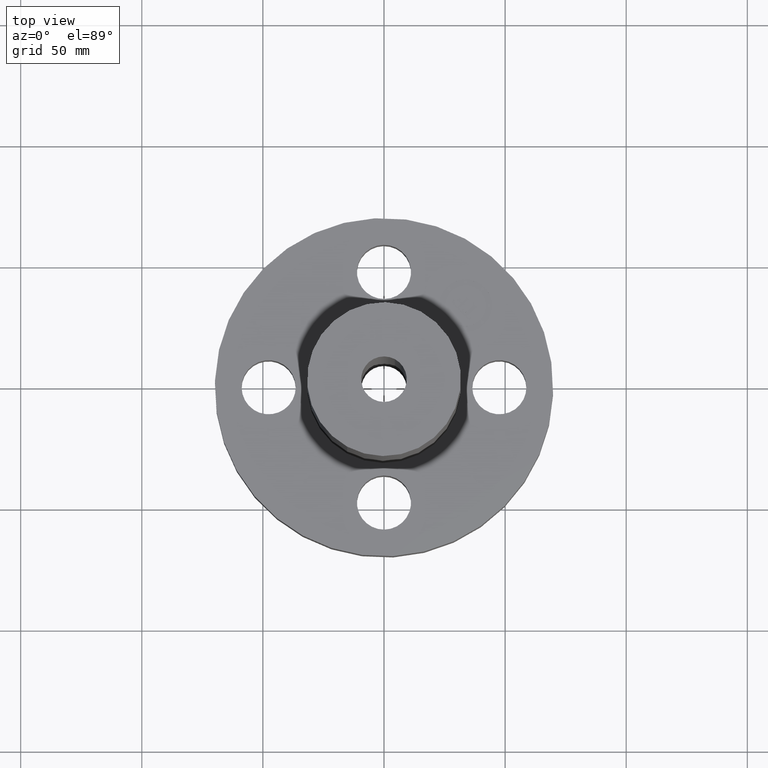
[diagram: clean part render]
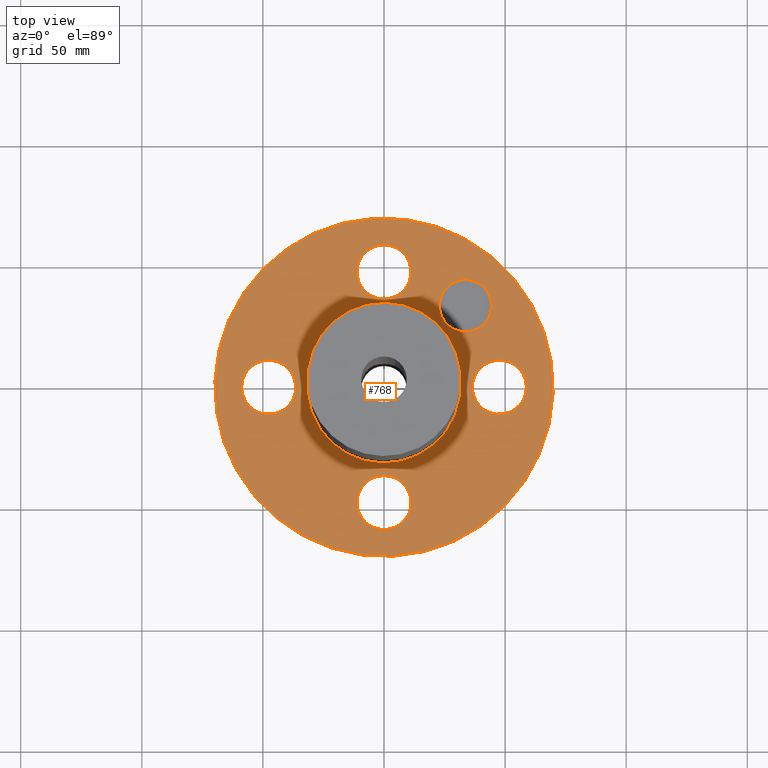
[diagram: same view with one face highlighted and labeled with its STEP entity id]
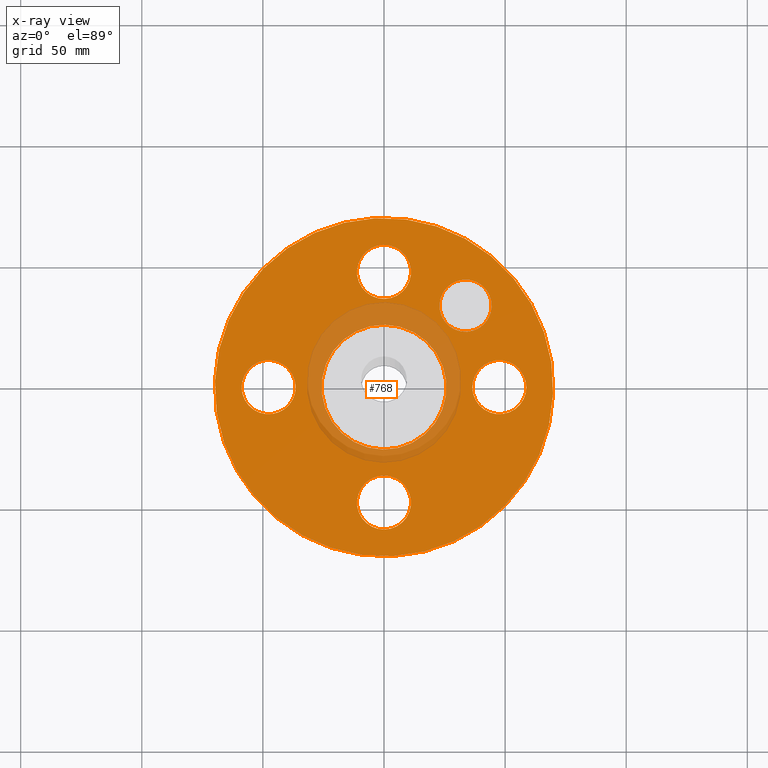
[diagram: x-ray of the same camera — body ghosted, the highlighted face saturated]
A machine part, top view. The second image highlights one B-rep face of the part: STEP entity #768.
The next image is the same camera in x-ray: the body ghosted, the highlighted face saturated — about 11% of this face is hidden behind the body in this view.
In plain terms, the highlighted planar face has unit normal (0, 0, -1).
Its self-contained STEP definition (entity closure, byte-faithful):
#51=AXIS2_PLACEMENT_3D('Circle Axis2P3D',#49,#50,$) ;
#182=AXIS2_PLACEMENT_3D('Circle Axis2P3D',#180,#181,$) ;
#206=AXIS2_PLACEMENT_3D('Circle Axis2P3D',#204,#205,$) ;
#225=AXIS2_PLACEMENT_3D('Circle Axis2P3D',#223,#224,$) ;
#242=AXIS2_PLACEMENT_3D('Circle Axis2P3D',#240,#241,$) ;
#277=AXIS2_PLACEMENT_3D('Circle Axis2P3D',#275,#276,$) ;
#606=AXIS2_PLACEMENT_3D('Circle Axis2P3D',#604,#605,$) ;
#625=AXIS2_PLACEMENT_3D('Circle Axis2P3D',#623,#624,$) ;
#649=AXIS2_PLACEMENT_3D('Circle Axis2P3D',#647,#648,$) ;
#668=AXIS2_PLACEMENT_3D('Circle Axis2P3D',#666,#667,$) ;
#692=AXIS2_PLACEMENT_3D('Circle Axis2P3D',#690,#691,$) ;
#711=AXIS2_PLACEMENT_3D('Circle Axis2P3D',#709,#710,$) ;
#724=AXIS2_PLACEMENT_3D('Plane Axis2P3D',#721,#722,#723) ;
#752=AXIS2_PLACEMENT_3D('Circle Axis2P3D',#750,#751,$) ;
#761=AXIS2_PLACEMENT_3D('Circle Axis2P3D',#759,#760,$) ;
#44=CARTESIAN_POINT('Vertex',(1.48886367277,-0.210947236987,1.25)) ;
#49=CARTESIAN_POINT('Axis2P3D Location',(1.87500000001,0.,1.25000000001)) ;
#53=CARTESIAN_POINT('Vertex',(2.26113632724,0.210947236987,1.25)) ;
#180=CARTESIAN_POINT('Axis2P3D Location',(1.87500000001,0.,1.25000000001)) ;
#201=CARTESIAN_POINT('Vertex',(-1.31842023117,-2.41335204521,1.25)) ;
#204=CARTESIAN_POINT('Axis2P3D Location',(0.,0.,1.25)) ;
#208=CARTESIAN_POINT('Vertex',(1.31842023117,2.41335204521,1.25)) ;
#223=CARTESIAN_POINT('Axis2P3D Location',(0.,0.,1.25)) ;
#240=CARTESIAN_POINT('Axis2P3D Location',(0.,0.,1.25000000001)) ;
#244=CARTESIAN_POINT('Vertex',(0.486616921685,0.890746300322,1.25000000001)) ;
#246=CARTESIAN_POINT('Vertex',(-0.486616921685,-0.890746300322,1.25000000001)) ;
#275=CARTESIAN_POINT('Axis2P3D Location',(0.,0.,1.25000000001)) ;
#601=CARTESIAN_POINT('Vertex',(-0.210947236987,-1.48886367277,1.25000000001)) ;
#604=CARTESIAN_POINT('Axis2P3D Location',(1.14810637421E-016,-1.87500000001,1.25000000001)) ;
#608=CARTESIAN_POINT('Vertex',(0.210947236987,-2.26113632724,1.25000000001)) ;
#623=CARTESIAN_POINT('Axis2P3D Location',(1.14810637421E-016,-1.87500000001,1.25000000001)) ;
#644=CARTESIAN_POINT('Vertex',(-1.48886367277,0.210947236987,1.25000000001)) ;
#647=CARTESIAN_POINT('Axis2P3D Location',(-1.87500000001,-2.29621274841E-016,1.25000000001)) ;
#651=CARTESIAN_POINT('Vertex',(-2.26113632724,-0.210947236987,1.25000000001)) ;
#666=CARTESIAN_POINT('Axis2P3D Location',(-1.87500000001,-2.29621274841E-016,1.25000000001)) ;
#687=CARTESIAN_POINT('Vertex',(0.210947236987,1.48886367277,1.25000000001)) ;
#690=CARTESIAN_POINT('Axis2P3D Location',(-3.44431912262E-016,1.87500000001,1.25000000001)) ;
#694=CARTESIAN_POINT('Vertex',(-0.210947236987,2.26113632724,1.25000000001)) ;
#709=CARTESIAN_POINT('Axis2P3D Location',(-3.44431912262E-016,1.87500000001,1.25000000001)) ;
#721=CARTESIAN_POINT('Axis2P3D Location',(0.,2.75000000001,1.25000000001)) ;
#750=CARTESIAN_POINT('Axis2P3D Location',(1.32582521473,1.32582521473,1.25000000001)) ;
#754=CARTESIAN_POINT('Vertex',(1.62634559373,1.02530483573,1.25000000001)) ;
#756=CARTESIAN_POINT('Vertex',(1.02530483573,1.62634559373,1.25000000001)) ;
#759=CARTESIAN_POINT('Axis2P3D Location',(1.32582521473,1.32582521473,1.25000000001)) ;
#50=DIRECTION('Axis2P3D Direction',(0.,-0.,0.0393700787402)) ;
#181=DIRECTION('Axis2P3D Direction',(0.,-0.,0.0393700787402)) ;
#205=DIRECTION('Axis2P3D Direction',(0.,0.,-0.0393700787402)) ;
#224=DIRECTION('Axis2P3D Direction',(0.,0.,-0.0393700787402)) ;
#241=DIRECTION('Axis2P3D Direction',(0.,0.,-0.0393700787402)) ;
#276=DIRECTION('Axis2P3D Direction',(0.,0.,-0.0393700787402)) ;
#605=DIRECTION('Axis2P3D Direction',(-0.,0.,0.0393700787402)) ;
#624=DIRECTION('Axis2P3D Direction',(-0.,0.,0.0393700787402)) ;
#648=DIRECTION('Axis2P3D Direction',(0.,0.,0.0393700787402)) ;
#667=DIRECTION('Axis2P3D Direction',(0.,0.,0.0393700787402)) ;
#691=DIRECTION('Axis2P3D Direction',(0.,0.,0.0393700787402)) ;
#710=DIRECTION('Axis2P3D Direction',(0.,0.,0.0393700787402)) ;
#722=DIRECTION('Axis2P3D Direction',(0.,0.,-0.0393700787402)) ;
#723=DIRECTION('Axis2P3D XDirection',(0.0393700787402,0.,0.)) ;
#751=DIRECTION('Axis2P3D Direction',(0.,0.,-0.0393700787402)) ;
#760=DIRECTION('Axis2P3D Direction',(0.,0.,-0.0393700787402)) ;
#727=ORIENTED_EDGE('',*,*,#227,.F.) ;
#728=ORIENTED_EDGE('',*,*,#210,.F.) ;
#731=ORIENTED_EDGE('',*,*,#55,.T.) ;
#732=ORIENTED_EDGE('',*,*,#184,.T.) ;
#735=ORIENTED_EDGE('',*,*,#279,.T.) ;
#736=ORIENTED_EDGE('',*,*,#248,.T.) ;
#739=ORIENTED_EDGE('',*,*,#627,.T.) ;
#740=ORIENTED_EDGE('',*,*,#610,.T.) ;
#743=ORIENTED_EDGE('',*,*,#670,.T.) ;
#744=ORIENTED_EDGE('',*,*,#653,.T.) ;
#747=ORIENTED_EDGE('',*,*,#713,.T.) ;
#748=ORIENTED_EDGE('',*,*,#696,.T.) ;
#765=ORIENTED_EDGE('',*,*,#758,.F.) ;
#766=ORIENTED_EDGE('',*,*,#763,.F.) ;
#733=FACE_BOUND('',#730,.T.) ;
#737=FACE_BOUND('',#734,.T.) ;
#741=FACE_BOUND('',#738,.T.) ;
#745=FACE_BOUND('',#742,.T.) ;
#749=FACE_BOUND('',#746,.T.) ;
#767=FACE_BOUND('',#764,.T.) ;
#768=ADVANCED_FACE('PartBody',(#729,#733,#737,#741,#745,#749,#767),#725,.F.) ;
#52=CIRCLE('generated circle',#51,0.440000000002) ;
#183=CIRCLE('generated circle',#182,0.440000000002) ;
#207=CIRCLE('generated circle',#206,2.75000000001) ;
#226=CIRCLE('generated circle',#225,2.75000000001) ;
#243=CIRCLE('generated circle',#242,1.015) ;
#278=CIRCLE('generated circle',#277,1.015) ;
#607=CIRCLE('generated circle',#606,0.440000000002) ;
#626=CIRCLE('generated circle',#625,0.440000000002) ;
#650=CIRCLE('generated circle',#649,0.440000000002) ;
#669=CIRCLE('generated circle',#668,0.440000000002) ;
#693=CIRCLE('generated circle',#692,0.440000000002) ;
#712=CIRCLE('generated circle',#711,0.440000000002) ;
#753=CIRCLE('generated circle',#752,0.424999995752) ;
#762=CIRCLE('generated circle',#761,0.424999995752) ;
#55=EDGE_CURVE('',#54,#45,#52,.F.) ;
#184=EDGE_CURVE('',#45,#54,#183,.F.) ;
#210=EDGE_CURVE('',#202,#209,#207,.T.) ;
#227=EDGE_CURVE('',#209,#202,#226,.T.) ;
#248=EDGE_CURVE('',#245,#247,#243,.T.) ;
#279=EDGE_CURVE('',#247,#245,#278,.T.) ;
#610=EDGE_CURVE('',#609,#602,#607,.F.) ;
#627=EDGE_CURVE('',#602,#609,#626,.F.) ;
#653=EDGE_CURVE('',#652,#645,#650,.F.) ;
#670=EDGE_CURVE('',#645,#652,#669,.F.) ;
#696=EDGE_CURVE('',#695,#688,#693,.F.) ;
#713=EDGE_CURVE('',#688,#695,#712,.F.) ;
#758=EDGE_CURVE('',#755,#757,#753,.F.) ;
#763=EDGE_CURVE('',#757,#755,#762,.F.) ;
#726=EDGE_LOOP('',(#727,#728)) ;
#730=EDGE_LOOP('',(#731,#732)) ;
#734=EDGE_LOOP('',(#735,#736)) ;
#738=EDGE_LOOP('',(#739,#740)) ;
#742=EDGE_LOOP('',(#743,#744)) ;
#746=EDGE_LOOP('',(#747,#748)) ;
#764=EDGE_LOOP('',(#765,#766)) ;
#729=FACE_OUTER_BOUND('',#726,.T.) ;
#725=PLANE('',#724) ;
#45=VERTEX_POINT('',#44) ;
#54=VERTEX_POINT('',#53) ;
#202=VERTEX_POINT('',#201) ;
#209=VERTEX_POINT('',#208) ;
#245=VERTEX_POINT('',#244) ;
#247=VERTEX_POINT('',#246) ;
#602=VERTEX_POINT('',#601) ;
#609=VERTEX_POINT('',#608) ;
#645=VERTEX_POINT('',#644) ;
#652=VERTEX_POINT('',#651) ;
#688=VERTEX_POINT('',#687) ;
#695=VERTEX_POINT('',#694) ;
#755=VERTEX_POINT('',#754) ;
#757=VERTEX_POINT('',#756) ;